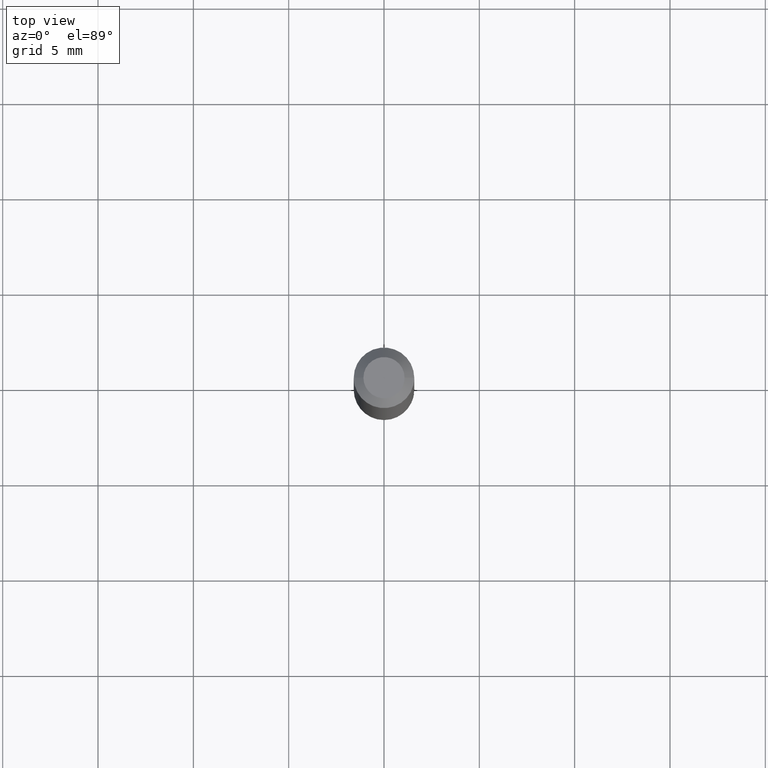
[diagram: clean part render]
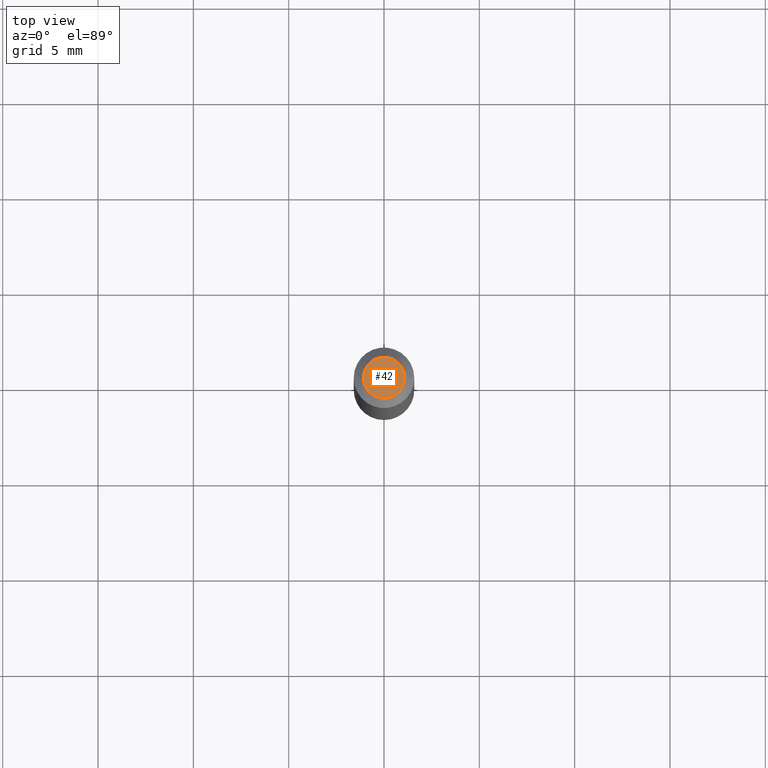
[diagram: same view with one face highlighted and labeled with its STEP entity id]
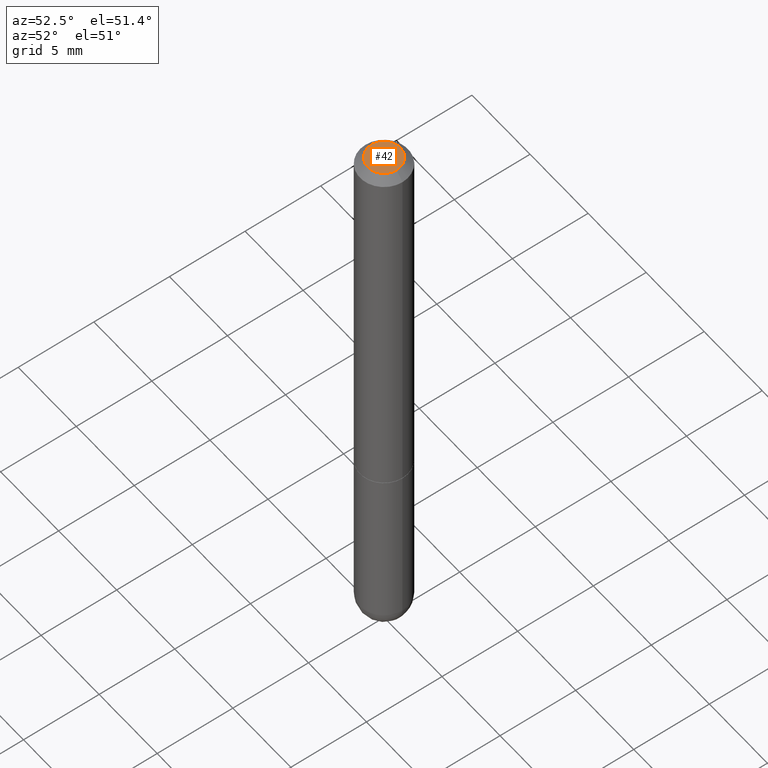
[diagram: same view with one face highlighted and labeled with its STEP entity id]
A machine part, top view. The second image highlights one B-rep face of the part: STEP entity #42.
A second angle (auxiliary view) of the same face is appended — the face is thin or edge-on in the first view.
In plain terms, the highlighted planar face has unit normal (0, -0, -1).
Its self-contained STEP definition (entity closure, byte-faithful):
#6 = DIRECTION ( 'NONE',  ( 2.438088387897960049E-29, -3.491481338843145188E-15, -1.000000000000000000 ) ) ;
#25 = DIRECTION ( 'NONE',  ( 1.000000000000000000, -6.982962677686265922E-15, 4.852736867747402641E-29 ) ) ;
#42 = ADVANCED_FACE ( 'NONE', ( #97 ), #366, .F. ) ;
#60 = AXIS2_PLACEMENT_3D ( 'NONE', #61, #219, #25 ) ;
#61 = CARTESIAN_POINT ( 'NONE',  ( -6.158723344577796643E-45, 8.793024705244639712E-31, 2.518422369159242870E-16 ) ) ;
#86 = CARTESIAN_POINT ( 'NONE',  ( 2.967759138016640869E-16, 0.04249999999999968386, -2.246683844287043922E-17 ) ) ;
#90 = VERTEX_POINT ( 'NONE', #145 ) ;
#93 = AXIS2_PLACEMENT_3D ( 'NONE', #355, #332, #171 ) ;
#97 = FACE_OUTER_BOUND ( 'NONE', #220, .T. ) ;
#145 = CARTESIAN_POINT ( 'NONE',  ( 0.04249999999999968386, -3.950909582714352654E-16, 2.518422369159267029E-16 ) ) ;
#169 = CIRCLE ( 'NONE', #60, 0.04249999999999968386 ) ;
#170 = ORIENTED_EDGE ( 'NONE', *, *, #179, .T. ) ;
#171 = DIRECTION ( 'NONE',  ( 1.000000000000000000, -6.982962677686265922E-15, 4.852736867747402641E-29 ) ) ;
#179 = EDGE_CURVE ( 'NONE', #90, #410, #330, .T. ) ;
#219 = DIRECTION ( 'NONE',  ( -2.445468806185136597E-29, 3.491481338843145583E-15, 1.000000000000000000 ) ) ;
#220 = EDGE_LOOP ( 'NONE', ( #412, #170 ) ) ;
#257 = CARTESIAN_POINT ( 'NONE',  ( -0.04249999999999968386, 3.316907271900965742E-16, 2.518422369159220683E-16 ) ) ;
#299 = DIRECTION ( 'NONE',  ( -1.000000000000000000, 6.982962677686265922E-15, -4.876176775795935793E-29 ) ) ;
#313 = EDGE_CURVE ( 'NONE', #410, #90, #169, .T. ) ;
#330 = CIRCLE ( 'NONE', #93, 0.04249999999999968386 ) ;
#332 = DIRECTION ( 'NONE',  ( -2.445468806185136597E-29, 3.491481338843145583E-15, 1.000000000000000000 ) ) ;
#355 = CARTESIAN_POINT ( 'NONE',  ( -6.158723344577796643E-45, 8.793024705244639712E-31, 2.518422369159242870E-16 ) ) ;
#366 = PLANE ( 'NONE',  #375 ) ;
#375 = AXIS2_PLACEMENT_3D ( 'NONE', #86, #6, #299 ) ;
#410 = VERTEX_POINT ( 'NONE', #257 ) ;
#412 = ORIENTED_EDGE ( 'NONE', *, *, #313, .T. ) ;